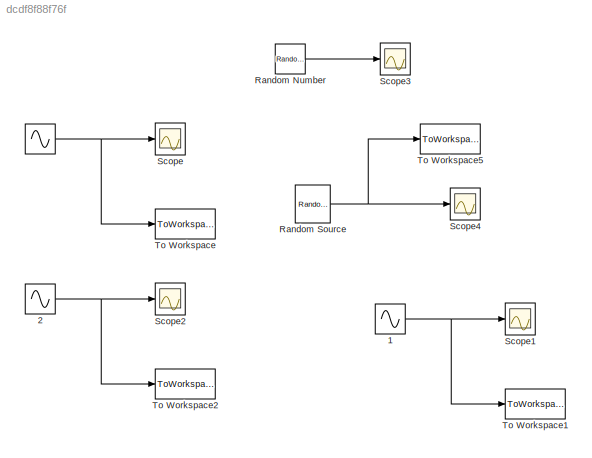
MODEL slx_dcdf8f88f76f
KIND model
BLOCK [Sin]  
  Amplitude = .489
  Bias = .46
  Frequency = .03
  Phase = -1.1
  Ports = [0, 1]
  SampleTime = Sample_Time
BLOCK [Sin]  1
  Amplitude = .49/2
  Bias = .75
  Commented = on
  Frequency = .04
  Phase = 1.57
  Ports = [0, 1]
  SampleTime = Sample_Time
BLOCK [Sin]  2
  Amplitude = .49
  Bias = .5
  Frequency = .027
  Phase = 1.95
  Ports = [0, 1]
  SampleTime = Sample_Time
BLOCK [RandomNumber] Random Number
  Commented = on
  Mean = 0.03
  SampleTime = 1
  Seed = rand
  Variance = .0001
BLOCK [Reference] Random Source  REF=dspsrcs4/Random
Source
  CltLength = 12
  Commented = on
  DataType = Single
  Diagnostics = AllowInheritedTsInSrc
  IsInherit = on
  MaxVal = 1
  MeanVal = .1
  MinVal = 0
  NormMethod = Ziggurat
  OutComplex = Real
  Ports = [0, 1]
  RepMode = Not repeatable
  SampFrame = 1
  SampMode = Continuous
  SampTime = 1
  SourceBlock = dspsrcs4/Random\nSource
  SourceType = Random Source
  SrcType = Gaussian
  UserDataPersistent = on
  VarVal = .001
  rawSeed = 1
BLOCK [Scope] Scope
  Floating = off
  LimitDataPoints = off
  NumInputPorts = 1
  Ports = [1]
  ShowLegends = off
  ZoomMode = yonly
BLOCK [Scope] Scope1
  Commented = on
  Floating = off
  LimitDataPoints = off
  NumInputPorts = 1
  Ports = [1]
  SaveName = ScopeData1
  ShowLegends = off
BLOCK [Scope] Scope2
  Floating = off
  LimitDataPoints = off
  NumInputPorts = 1
  Ports = [1]
  SaveName = ScopeData2
  ShowLegends = off
BLOCK [Scope] Scope3
  Commented = on
  Floating = off
  LimitDataPoints = off
  NumInputPorts = 1
  Ports = [1]
  SaveName = ScopeData3
  ShowLegends = off
BLOCK [Scope] Scope4
  Commented = on
  Floating = off
  LimitDataPoints = off
  NumInputPorts = 1
  Ports = [1]
  SaveName = ScopeData4
  ShowLegends = off
BLOCK [ToWorkspace] To Workspace
  FixptAsFi = on
  MaxDataPoints = inf
  Ports = [1]
  SampleTime = -1
  Save2DSignal = 3-D array (concatenate along third dimension)
  VariableName = a
BLOCK [ToWorkspace] To Workspace1
  Commented = on
  FixptAsFi = on
  MaxDataPoints = inf
  Ports = [1]
  SampleTime = -1
  Save2DSignal = 3-D array (concatenate along third dimension)
  VariableName = b
BLOCK [ToWorkspace] To Workspace2
  FixptAsFi = on
  MaxDataPoints = inf
  Ports = [1]
  SampleTime = -1
  Save2DSignal = 3-D array (concatenate along third dimension)
  VariableName = c
BLOCK [ToWorkspace] To Workspace5
  Commented = on
  FixptAsFi = on
  MaxDataPoints = inf
  Ports = [1]
  SampleTime = -1
  Save2DSignal = 3-D array (concatenate along third dimension)
  VariableName = rranndom
NET  1:1 -> Scope1:1, To Workspace1:1
NET  2:1 -> Scope2:1, To Workspace2:1
NET  :1 -> Scope:1, To Workspace:1
LINE Random Number:1 -> Scope3:1
NET Random Source:1 -> Scope4:1, To Workspace5:1
note: NET lines group one-source signal fan-out (src -> all destinations, sorted); 1:1 wires keep LINE
